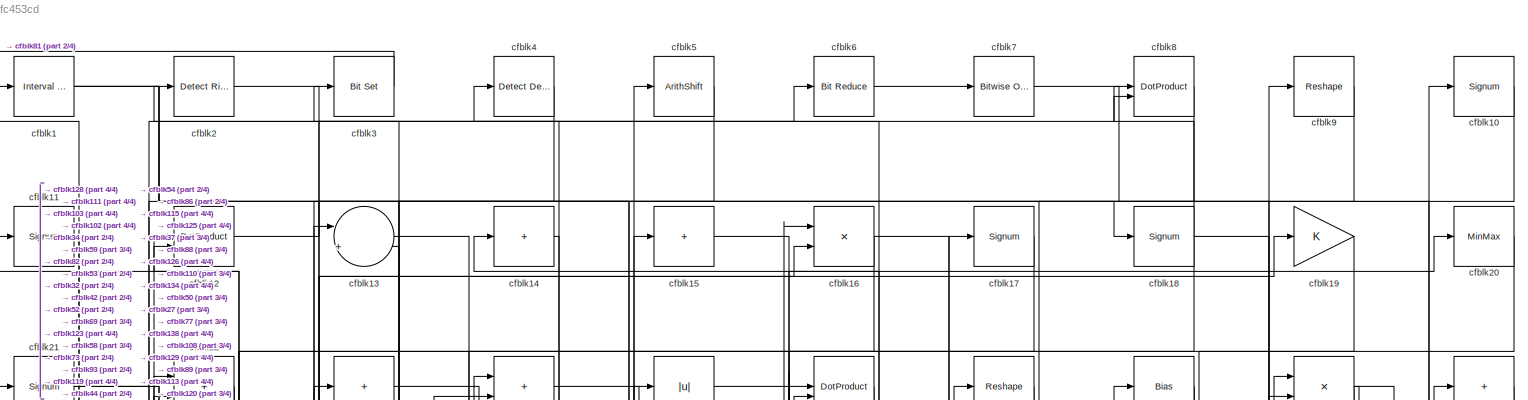
[diagram: root canvas - part 1/4, full width, top band]
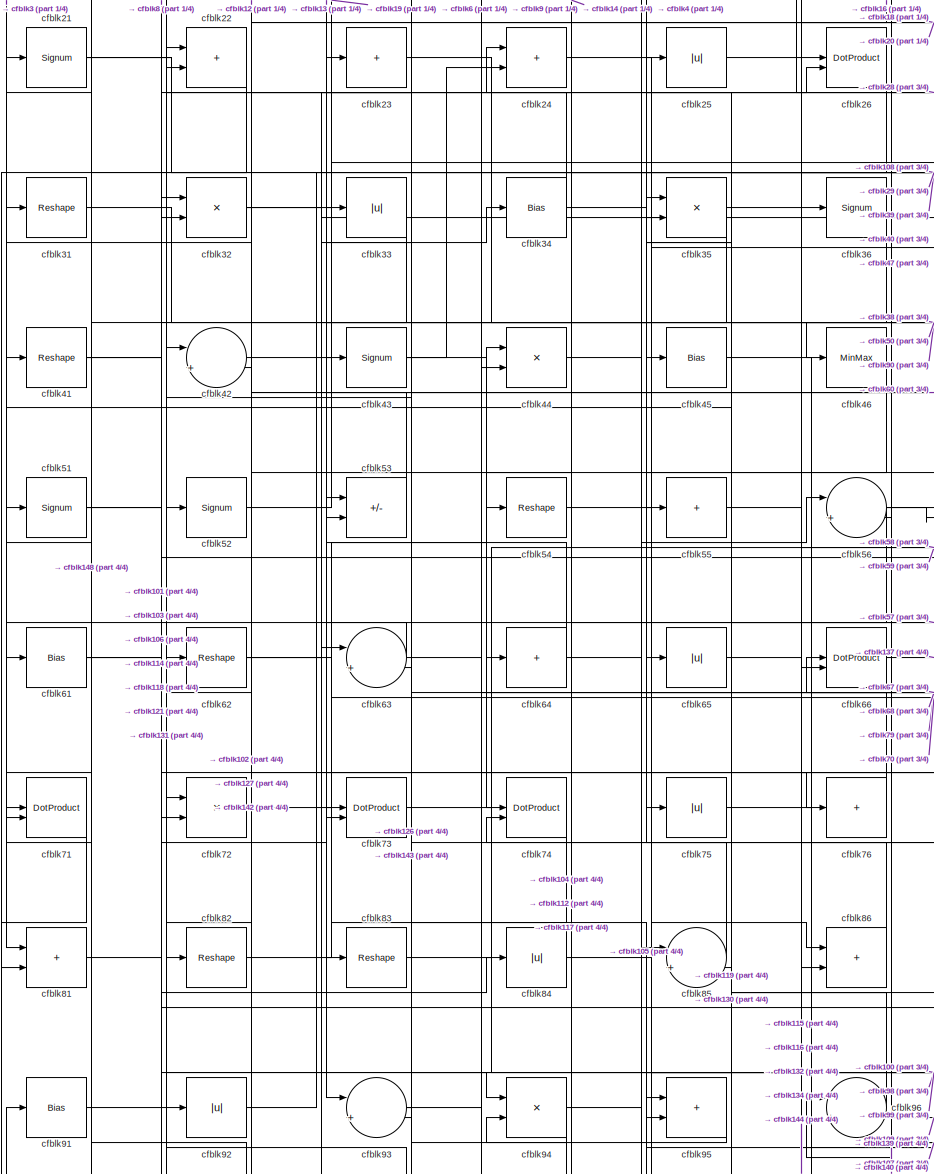
[diagram: root canvas - part 2/4, middle left region]
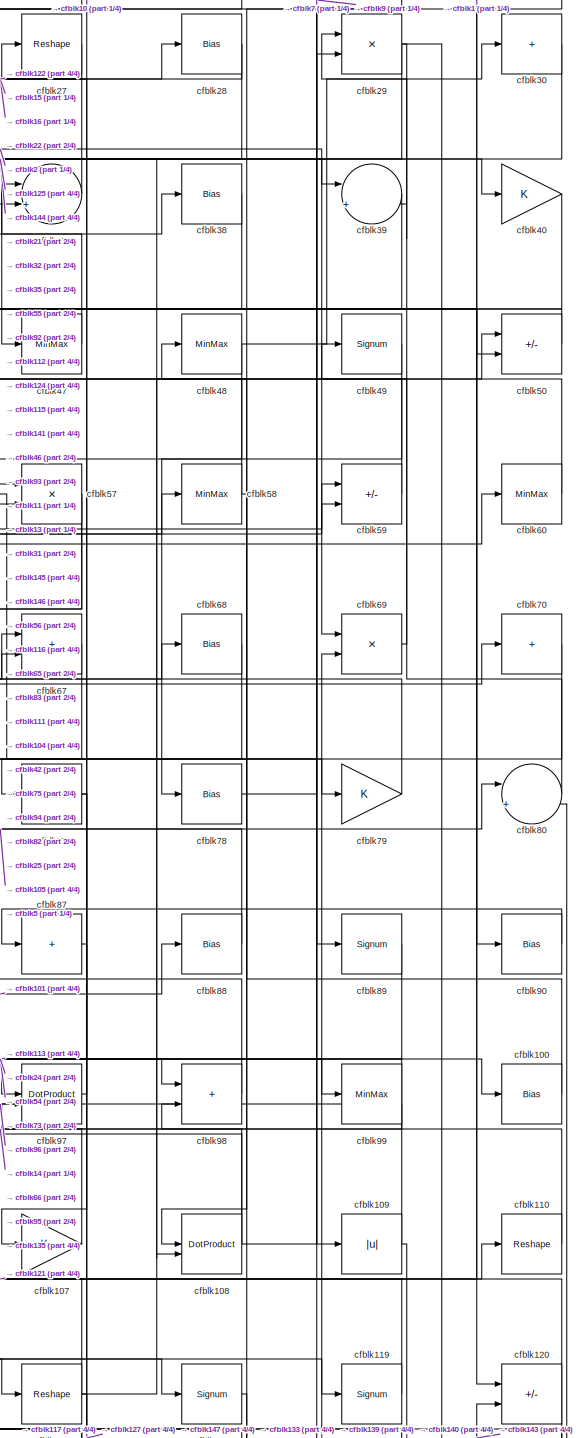
[diagram: root canvas - part 3/4, middle right region]
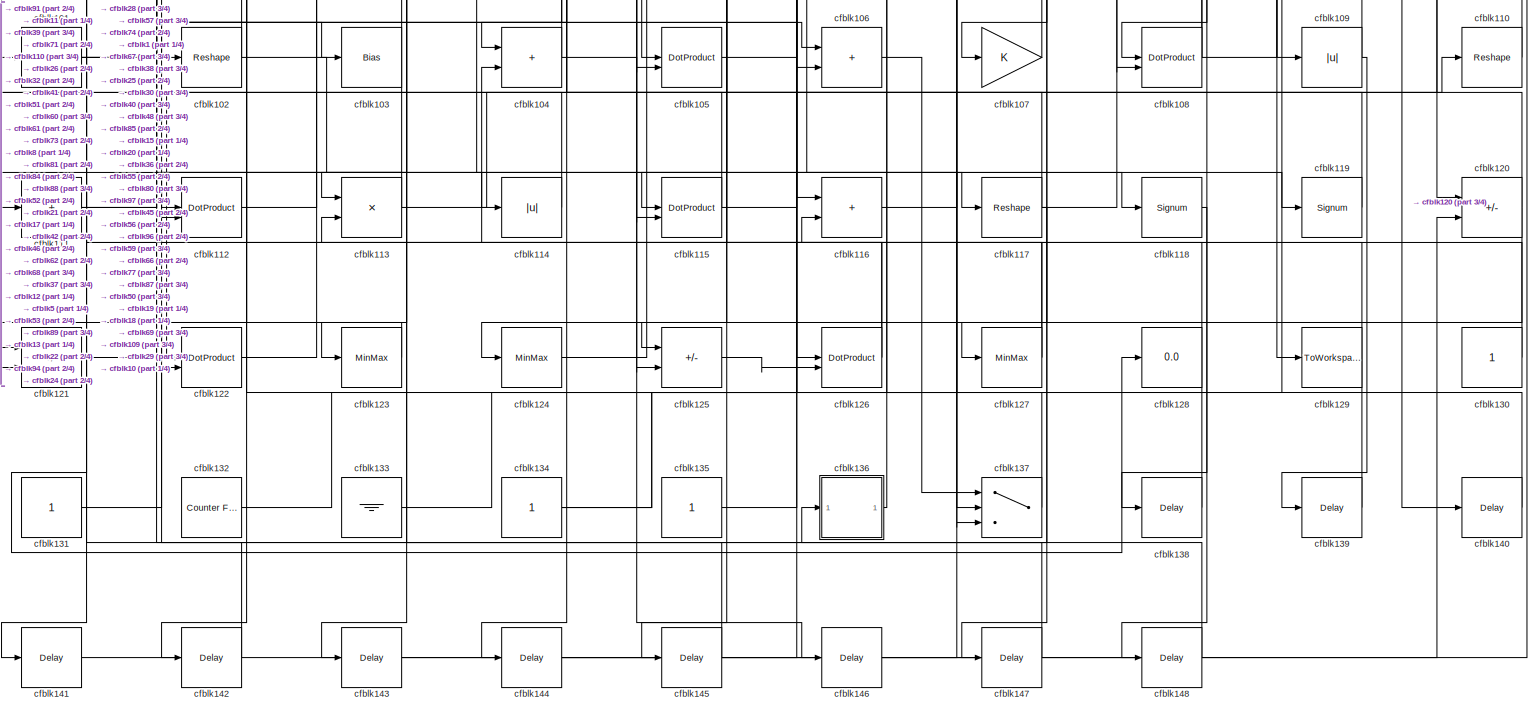
[diagram: root canvas - part 4/4, full width, bottom band]
MODEL slx_b37c7fc453cd
KIND model
CONFIG AbsTol = auto
CONFIG EnableMultiTasking = off
CONFIG FixedStep = auto
CONFIG MaxStep = auto
CONFIG MinStep = auto
CONFIG RelTol = 1e-3
CONFIG SampleTimeConstraint = Unconstrained
CONFIG SolverName = VariableStepAuto
CONFIG StartTime = 0.0
CONFIG StopTime = 10.0
BLOCK [Reference] cfblk1  REF=hdlsllib/Logic and Bit
Operations/Interval Test
  SourceBlock = hdlsllib/Logic and Bit\nOperations/Interval Test
  SourceType = Interval Test
BLOCK [Signum] cfblk10
BLOCK [Bias] cfblk100
  Bias = 0.0
  SaturateOnIntegerOverflow = off
BLOCK [Sum] cfblk101
  IconShape = rectangular
  Inputs = +
BLOCK [Reshape] cfblk102
BLOCK [Bias] cfblk103
  Bias = 0.0
  SaturateOnIntegerOverflow = off
BLOCK [Sum] cfblk104
  IconShape = rectangular
BLOCK [DotProduct] cfblk105
  OutDataTypeStr = Inherit: Inherit via internal rule
BLOCK [Sum] cfblk106
  IconShape = rectangular
BLOCK [Gain] cfblk107
BLOCK [DotProduct] cfblk108
  OutDataTypeStr = Inherit: Inherit via internal rule
BLOCK [Abs] cfblk109
  SaturateOnIntegerOverflow = off
BLOCK [Signum] cfblk11
BLOCK [Reshape] cfblk110
BLOCK [Sum] cfblk111
  IconShape = rectangular
  Inputs = +
BLOCK [DotProduct] cfblk112
  OutDataTypeStr = Inherit: Inherit via internal rule
BLOCK [Product] cfblk113
  Inputs = */
  RndMeth = Zero
  SaturateOnIntegerOverflow = on
BLOCK [Abs] cfblk114
  SaturateOnIntegerOverflow = off
BLOCK [DotProduct] cfblk115
  OutDataTypeStr = Inherit: Inherit via internal rule
BLOCK [Sum] cfblk116
  IconShape = rectangular
BLOCK [Reshape] cfblk117
BLOCK [Signum] cfblk118
BLOCK [Signum] cfblk119
BLOCK [DotProduct] cfblk12
  OutDataTypeStr = Inherit: Inherit via internal rule
BLOCK [Sum] cfblk120
  IconShape = rectangular
  Inputs = +-
BLOCK [Sum] cfblk121
  IconShape = rectangular
  Inputs = +-
BLOCK [DotProduct] cfblk122
  OutDataTypeStr = Inherit: Inherit via internal rule
BLOCK [MinMax] cfblk123
BLOCK [MinMax] cfblk124
BLOCK [Sum] cfblk125
  IconShape = rectangular
  Inputs = +-
BLOCK [DotProduct] cfblk126
  OutDataTypeStr = Inherit: Inherit via internal rule
BLOCK [MinMax] cfblk127
BLOCK [Display] cfblk128
  Decimation = 1
BLOCK [ToWorkspace] cfblk129
  MaxDataPoints = inf
  SampleTime = -1
  SaveFormat = Timeseries
  VariableName = simout
BLOCK [Sum] cfblk13
  Inputs = |++
BLOCK [Constant] cfblk130
  SampleTime = -1
BLOCK [Constant] cfblk131
  SampleTime = -1
BLOCK [Reference] cfblk132  REF=hdlsllib/Sources/Counter
Free-Running
  SourceBlock = hdlsllib/Sources/Counter\nFree-Running
  SourceType = Counter Free-Running
BLOCK [Ground] cfblk133
BLOCK [Constant] cfblk134
  SampleTime = -1
BLOCK [Constant] cfblk135
  SampleTime = -1
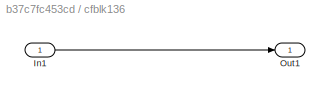
BLOCK [SubSystem] cfblk136
  LibrarySourceBlock = hdlsllib/Ports &\nSubsystems/Subsystem
BLOCK [Inport] cfblk136/In1
BLOCK [Outport] cfblk136/Out1
BLOCK [Switch] cfblk137
  InputSameDT = off
  SaturateOnIntegerOverflow = off
BLOCK [Delay] cfblk138
  InputPortMap = u0
  SampleTime = 1
BLOCK [Delay] cfblk139
  InputPortMap = u0
  SampleTime = 1
BLOCK [Sum] cfblk14
  IconShape = rectangular
  Inputs = +
BLOCK [Delay] cfblk140
  InputPortMap = u0
  SampleTime = 1
BLOCK [Delay] cfblk141
  InputPortMap = u0
  SampleTime = 1
BLOCK [Delay] cfblk142
  InputPortMap = u0
  SampleTime = 1
BLOCK [Delay] cfblk143
  InputPortMap = u0
  SampleTime = 1
BLOCK [Delay] cfblk144
  InputPortMap = u0
  SampleTime = 1
BLOCK [Delay] cfblk145
  InputPortMap = u0
  SampleTime = 1
BLOCK [Delay] cfblk146
  InputPortMap = u0
  SampleTime = 1
BLOCK [Delay] cfblk147
  InputPortMap = u0
  SampleTime = 1
BLOCK [Delay] cfblk148
  InputPortMap = u0
  SampleTime = 1
BLOCK [Sum] cfblk15
  IconShape = rectangular
  Inputs = +
BLOCK [Product] cfblk16
  Inputs = */
  RndMeth = Zero
  SaturateOnIntegerOverflow = on
BLOCK [Signum] cfblk17
BLOCK [Signum] cfblk18
BLOCK [Gain] cfblk19
BLOCK [Reference] cfblk2  REF=hdlsllib/Logic and Bit
Operations/Detect Rise
Positive
  SourceBlock = hdlsllib/Logic and Bit\nOperations/Detect Rise\nPositive
  SourceType = Detect Rise Positive
BLOCK [MinMax] cfblk20
BLOCK [Signum] cfblk21
BLOCK [Sum] cfblk22
  IconShape = rectangular
BLOCK [Sum] cfblk23
  IconShape = rectangular
  Inputs = +
BLOCK [Sum] cfblk24
  IconShape = rectangular
BLOCK [Abs] cfblk25
  SaturateOnIntegerOverflow = off
BLOCK [DotProduct] cfblk26
  OutDataTypeStr = Inherit: Inherit via internal rule
BLOCK [Reshape] cfblk27
BLOCK [Bias] cfblk28
  Bias = 0.0
  SaturateOnIntegerOverflow = off
BLOCK [Product] cfblk29
  Inputs = */
  RndMeth = Zero
  SaturateOnIntegerOverflow = on
BLOCK [Reference] cfblk3  REF=simulink/Logic and Bit
Operations/Bit Set
  LibrarySourceBlock = hdlsllib/Logic and Bit\nOperations/Bit Set
  SourceBlock = simulink/Logic and Bit\nOperations/Bit Set
  SourceType = Bit Set
BLOCK [Sum] cfblk30
  IconShape = rectangular
  Inputs = +
BLOCK [Reshape] cfblk31
BLOCK [Product] cfblk32
  Inputs = */
  RndMeth = Zero
  SaturateOnIntegerOverflow = on
BLOCK [Abs] cfblk33
  SaturateOnIntegerOverflow = off
BLOCK [Bias] cfblk34
  Bias = 0.0
  SaturateOnIntegerOverflow = off
BLOCK [Product] cfblk35
  Inputs = */
  RndMeth = Zero
  SaturateOnIntegerOverflow = on
BLOCK [Signum] cfblk36
BLOCK [Sum] cfblk37
  Inputs = |++
BLOCK [Bias] cfblk38
  Bias = 0.0
  SaturateOnIntegerOverflow = off
BLOCK [Sum] cfblk39
  Inputs = |++
BLOCK [Reference] cfblk4  REF=simulink/Logic and Bit
Operations/Detect
Decrease
  LibrarySourceBlock = hdlsllib/Logic and Bit\nOperations/Detect\nDecrease
  SourceBlock = simulink/Logic and Bit\nOperations/Detect\nDecrease
  SourceType = Detect Decrease
BLOCK [Gain] cfblk40
BLOCK [Reshape] cfblk41
BLOCK [Sum] cfblk42
  Inputs = |++
BLOCK [Signum] cfblk43
BLOCK [Product] cfblk44
  Inputs = */
  RndMeth = Zero
  SaturateOnIntegerOverflow = on
BLOCK [Bias] cfblk45
  Bias = 0.0
  SaturateOnIntegerOverflow = off
BLOCK [MinMax] cfblk46
BLOCK [MinMax] cfblk47
BLOCK [MinMax] cfblk48
BLOCK [Signum] cfblk49
BLOCK [ArithShift] cfblk5
  BitShiftNumber = 8
  InputPortMap = u0
BLOCK [Sum] cfblk50
  IconShape = rectangular
  Inputs = +-
BLOCK [Signum] cfblk51
BLOCK [Signum] cfblk52
BLOCK [Sum] cfblk53
  IconShape = rectangular
  Inputs = +-
BLOCK [Reshape] cfblk54
BLOCK [Sum] cfblk55
  IconShape = rectangular
  Inputs = +
BLOCK [Sum] cfblk56
  Inputs = |++
BLOCK [Product] cfblk57
  Inputs = */
  RndMeth = Zero
  SaturateOnIntegerOverflow = on
BLOCK [MinMax] cfblk58
BLOCK [Sum] cfblk59
  IconShape = rectangular
  Inputs = +-
BLOCK [Reference] cfblk6  REF=hdlsllib/Logic and Bit
Operations/Bit Reduce
  SourceBlock = hdlsllib/Logic and Bit\nOperations/Bit Reduce
  SourceType = Bit Reduce
BLOCK [MinMax] cfblk60
BLOCK [Bias] cfblk61
  Bias = 0.0
  SaturateOnIntegerOverflow = off
BLOCK [Reshape] cfblk62
BLOCK [Sum] cfblk63
  Inputs = |++
BLOCK [Sum] cfblk64
  IconShape = rectangular
  Inputs = +
BLOCK [Abs] cfblk65
  SaturateOnIntegerOverflow = off
BLOCK [DotProduct] cfblk66
  OutDataTypeStr = Inherit: Inherit via internal rule
BLOCK [Sum] cfblk67
  IconShape = rectangular
BLOCK [Bias] cfblk68
  Bias = 0.0
  SaturateOnIntegerOverflow = off
BLOCK [Product] cfblk69
  Inputs = */
  RndMeth = Zero
  SaturateOnIntegerOverflow = on
BLOCK [Reference] cfblk7  REF=simulink/Logic and Bit
Operations/Bitwise
Operator
  LibrarySourceBlock = hdlsllib/Logic and Bit\nOperations/Bitwise\nOperator
  SourceBlock = simulink/Logic and Bit\nOperations/Bitwise\nOperator
  SourceType = Bitwise Operator
BLOCK [Sum] cfblk70
  IconShape = rectangular
  Inputs = +
BLOCK [DotProduct] cfblk71
  OutDataTypeStr = Inherit: Inherit via internal rule
BLOCK [Product] cfblk72
  Inputs = */
  RndMeth = Zero
  SaturateOnIntegerOverflow = on
BLOCK [DotProduct] cfblk73
  OutDataTypeStr = Inherit: Inherit via internal rule
BLOCK [DotProduct] cfblk74
  OutDataTypeStr = Inherit: Inherit via internal rule
BLOCK [Abs] cfblk75
  SaturateOnIntegerOverflow = off
BLOCK [Sum] cfblk76
  IconShape = rectangular
  Inputs = +
BLOCK [MinMax] cfblk77
BLOCK [Bias] cfblk78
  Bias = 0.0
  SaturateOnIntegerOverflow = off
BLOCK [Gain] cfblk79
BLOCK [DotProduct] cfblk8
  OutDataTypeStr = Inherit: Inherit via internal rule
BLOCK [Sum] cfblk80
  Inputs = |++
BLOCK [Sum] cfblk81
  IconShape = rectangular
BLOCK [Reshape] cfblk82
BLOCK [Reshape] cfblk83
BLOCK [Abs] cfblk84
  SaturateOnIntegerOverflow = off
BLOCK [Sum] cfblk85
  Inputs = |++
BLOCK [Sum] cfblk86
  IconShape = rectangular
BLOCK [Sum] cfblk87
  IconShape = rectangular
  Inputs = +
BLOCK [Bias] cfblk88
  Bias = 0.0
  SaturateOnIntegerOverflow = off
BLOCK [Signum] cfblk89
BLOCK [Reshape] cfblk9
BLOCK [Bias] cfblk90
  Bias = 0.0
  SaturateOnIntegerOverflow = off
BLOCK [Bias] cfblk91
  Bias = 0.0
  SaturateOnIntegerOverflow = off
BLOCK [Abs] cfblk92
  SaturateOnIntegerOverflow = off
BLOCK [Sum] cfblk93
  Inputs = |++
BLOCK [Product] cfblk94
  Inputs = */
  RndMeth = Zero
  SaturateOnIntegerOverflow = on
BLOCK [Sum] cfblk95
  IconShape = rectangular
BLOCK [Sum] cfblk96
  Inputs = |++
BLOCK [DotProduct] cfblk97
  OutDataTypeStr = Inherit: Inherit via internal rule
BLOCK [Sum] cfblk98
  IconShape = rectangular
BLOCK [MinMax] cfblk99
LINE cfblk100:1 -> cfblk48:1
NET cfblk101:1 -> cfblk26:2, cfblk84:1, cfblk88:1
NET cfblk102:1 -> cfblk137:2, cfblk21:1
NET cfblk103:1 -> cfblk122:1, cfblk12:1
NET cfblk104:1 -> cfblk146:1, cfblk22:1
LINE cfblk105:1 -> cfblk80:1
LINE cfblk106:1 -> cfblk137:1
LINE cfblk107:1 -> cfblk66:1
NET cfblk108:1 -> cfblk2:1, cfblk95:2, cfblk9:1
NET cfblk109:1 -> cfblk139:1, cfblk96:2
LINE cfblk10:1 -> cfblk77:1
LINE cfblk110:1 -> cfblk14:1
NET cfblk111:1 -> cfblk60:1, cfblk8:2
LINE cfblk112:1 -> cfblk37:2
NET cfblk113:1 -> cfblk10:1, cfblk111:1
LINE cfblk114:1 -> cfblk91:1
NET cfblk115:1 -> cfblk20:1, cfblk24:1
LINE cfblk116:1 -> cfblk59:2
NET cfblk117:1 -> cfblk136:1, cfblk50:1, cfblk74:2
LINE cfblk118:1 -> cfblk148:1
LINE cfblk119:1 -> cfblk25:1
LINE cfblk11:1 -> cfblk128:1
NET cfblk120:1 -> cfblk101:1, cfblk124:1
NET cfblk121:1 -> cfblk110:1, cfblk73:2
LINE cfblk122:1 -> cfblk28:1
LINE cfblk123:1 -> cfblk121:1
LINE cfblk124:1 -> cfblk38:1
LINE cfblk125:1 -> cfblk126:2
NET cfblk126:1 -> cfblk53:2, cfblk71:2
NET cfblk127:1 -> cfblk104:2, cfblk62:1
LINE cfblk12:1 -> cfblk18:1
LINE cfblk130:1 -> cfblk85:2
LINE cfblk131:1 -> cfblk52:1
LINE cfblk132:1 -> cfblk36:1
LINE cfblk133:1 -> cfblk69:2
NET cfblk134:1 -> cfblk17:1, cfblk66:2
LINE cfblk135:1 -> cfblk97:2
LINE cfblk136/In1:1 -> cfblk136/Out1:1
LINE cfblk136:1 -> cfblk116:2
LINE cfblk137:1 -> cfblk42:2
LINE cfblk138:1 -> cfblk1:1
LINE cfblk139:1 -> cfblk56:2
LINE cfblk13:1 -> cfblk119:1
LINE cfblk140:1 -> cfblk96:1
LINE cfblk141:1 -> cfblk80:2
LINE cfblk142:1 -> cfblk32:1
LINE cfblk143:1 -> cfblk120:2
LINE cfblk144:1 -> cfblk26:1
LINE cfblk145:1 -> cfblk122:2
LINE cfblk146:1 -> cfblk57:1
LINE cfblk147:1 -> cfblk113:2
LINE cfblk148:1 -> cfblk51:1
LINE cfblk14:1 -> cfblk54:1
LINE cfblk15:1 -> cfblk126:1
NET cfblk16:1 -> cfblk50:2, cfblk82:1
LINE cfblk17:1 -> cfblk102:1
NET cfblk18:1 -> cfblk129:1, cfblk86:2, cfblk8:1
LINE cfblk19:1 -> cfblk138:1
NET cfblk1:1 -> cfblk115:2, cfblk120:1, cfblk125:2
LINE cfblk20:1 -> cfblk44:2
NET cfblk21:1 -> cfblk108:2, cfblk63:1
NET cfblk22:1 -> cfblk121:2, cfblk71:1
LINE cfblk23:1 -> cfblk45:1
LINE cfblk24:1 -> cfblk99:1
LINE cfblk25:1 -> cfblk79:1
LINE cfblk26:1 -> cfblk63:2
LINE cfblk27:1 -> cfblk16:1
NET cfblk28:1 -> cfblk144:1, cfblk22:2
NET cfblk29:1 -> cfblk140:1, cfblk39:2, cfblk55:1
LINE cfblk2:1 -> cfblk69:1
LINE cfblk30:1 -> cfblk125:1
LINE cfblk31:1 -> cfblk90:1
NET cfblk32:1 -> cfblk16:2, cfblk40:1
LINE cfblk33:1 -> cfblk43:1
NET cfblk34:1 -> cfblk12:2, cfblk65:1
NET cfblk35:1 -> cfblk39:1, cfblk93:1
LINE cfblk36:1 -> cfblk72:2
LINE cfblk37:1 -> cfblk15:1
LINE cfblk38:1 -> cfblk93:2
LINE cfblk39:1 -> cfblk141:1
LINE cfblk3:1 -> cfblk81:1
LINE cfblk40:1 -> cfblk115:1
NET cfblk41:1 -> cfblk103:1, cfblk114:1
LINE cfblk42:1 -> cfblk19:1
NET cfblk43:1 -> cfblk24:2, cfblk74:1
LINE cfblk44:1 -> cfblk85:1
LINE cfblk45:1 -> cfblk117:1
LINE cfblk46:1 -> cfblk142:1
LINE cfblk47:1 -> cfblk37:1
NET cfblk48:1 -> cfblk145:1, cfblk30:1
LINE cfblk49:1 -> cfblk78:1
LINE cfblk4:1 -> cfblk53:1
LINE cfblk50:1 -> cfblk46:1
NET cfblk51:1 -> cfblk118:1, cfblk94:1
LINE cfblk52:1 -> cfblk6:1
LINE cfblk53:1 -> cfblk13:1
LINE cfblk54:1 -> cfblk98:1
LINE cfblk55:1 -> cfblk116:1
NET cfblk56:1 -> cfblk109:1, cfblk57:2, cfblk95:1
NET cfblk57:1 -> cfblk104:1, cfblk83:1
NET cfblk58:1 -> cfblk108:1, cfblk13:2
LINE cfblk59:1 -> cfblk11:1
LINE cfblk5:1 -> cfblk123:1
LINE cfblk60:1 -> cfblk31:1
NET cfblk61:1 -> cfblk106:2, cfblk76:1
NET cfblk62:1 -> cfblk105:1, cfblk34:1
NET cfblk63:1 -> cfblk61:1, cfblk75:1
NET cfblk64:1 -> cfblk23:1, cfblk56:1
LINE cfblk65:1 -> cfblk58:1
LINE cfblk66:1 -> cfblk137:3
LINE cfblk67:1 -> cfblk105:2
LINE cfblk68:1 -> cfblk112:1
LINE cfblk69:1 -> cfblk49:1
LINE cfblk6:1 -> cfblk7:1
LINE cfblk70:1 -> cfblk107:1
LINE cfblk71:1 -> cfblk81:2
LINE cfblk72:1 -> cfblk44:1
LINE cfblk73:1 -> cfblk100:1
LINE cfblk74:1 -> cfblk143:1
LINE cfblk75:1 -> cfblk68:1
LINE cfblk76:1 -> cfblk64:1
NET cfblk77:1 -> cfblk147:1, cfblk97:1
LINE cfblk78:1 -> cfblk29:2
LINE cfblk79:1 -> cfblk42:1
LINE cfblk7:1 -> cfblk89:1
LINE cfblk80:1 -> cfblk29:1
LINE cfblk81:1 -> cfblk106:1
LINE cfblk82:1 -> cfblk70:1
LINE cfblk83:1 -> cfblk59:1
LINE cfblk84:1 -> cfblk86:1
LINE cfblk85:1 -> cfblk33:1
LINE cfblk86:1 -> cfblk4:1
LINE cfblk87:1 -> cfblk127:1
LINE cfblk88:1 -> cfblk5:1
LINE cfblk89:1 -> cfblk113:1
LINE cfblk8:1 -> cfblk32:2
LINE cfblk90:1 -> cfblk87:1
LINE cfblk91:1 -> cfblk72:1
LINE cfblk92:1 -> cfblk47:1
NET cfblk93:1 -> cfblk3:1, cfblk67:2
NET cfblk94:1 -> cfblk112:2, cfblk67:1
LINE cfblk95:1 -> cfblk94:2
NET cfblk96:1 -> cfblk35:2, cfblk41:1
LINE cfblk97:1 -> cfblk27:1
LINE cfblk98:1 -> cfblk35:1
NET cfblk99:1 -> cfblk92:1, cfblk98:2
LINE cfblk9:1 -> cfblk73:1
note: NET lines group one-source signal fan-out (src -> all destinations, sorted); 1:1 wires keep LINE
